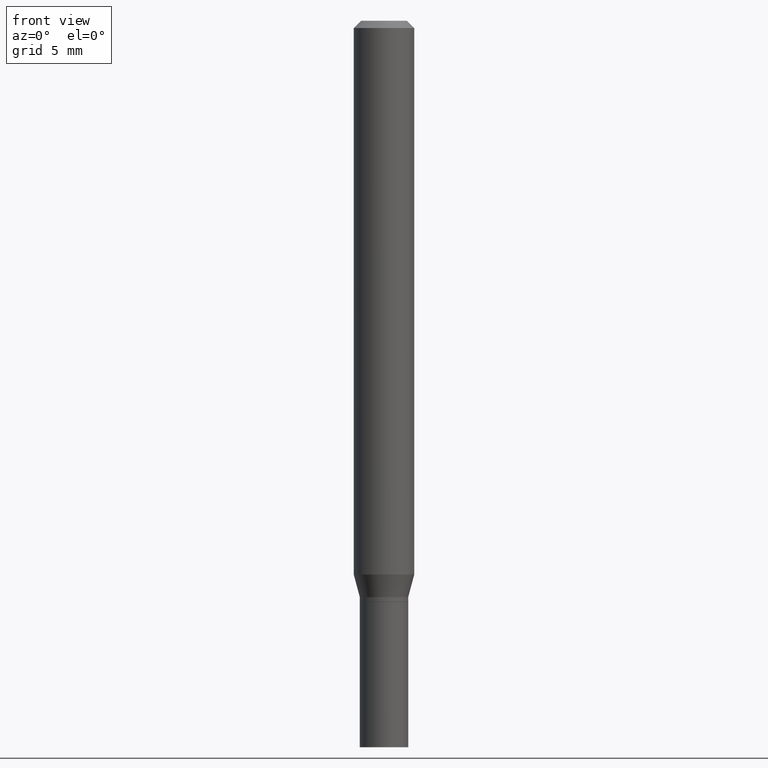
[diagram: clean part render]
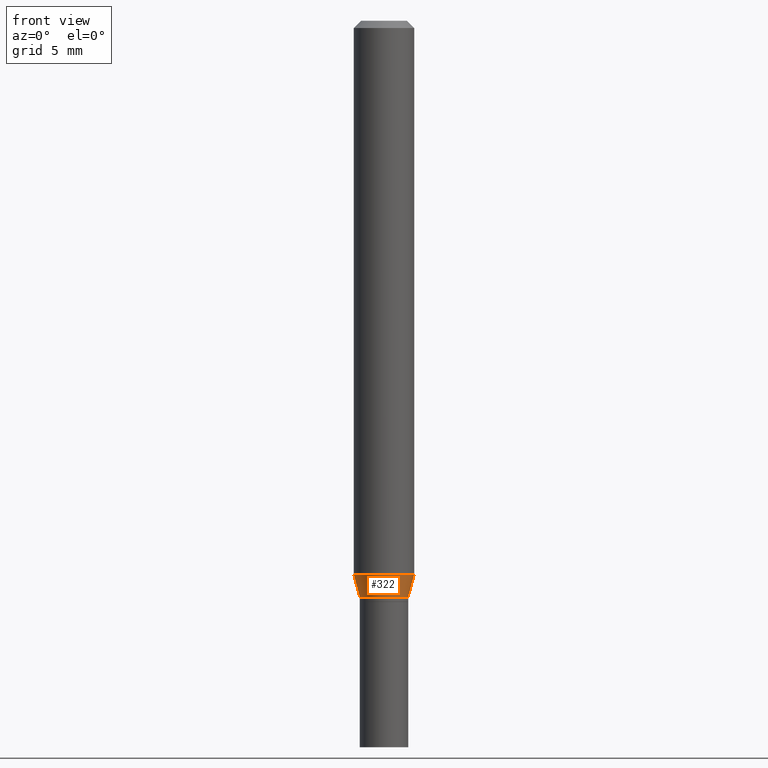
[diagram: same view with one face highlighted and labeled with its STEP entity id]
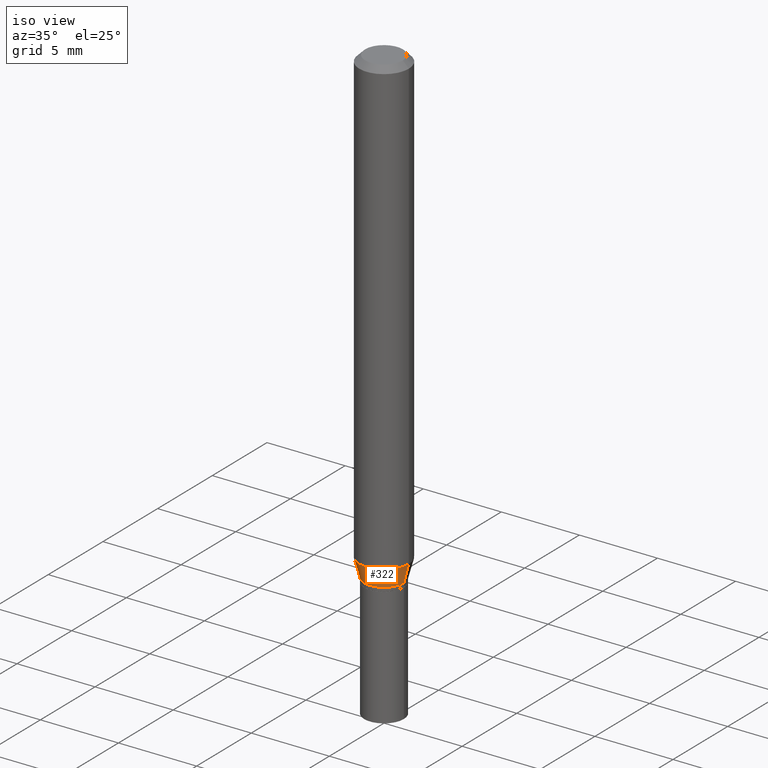
[diagram: same view with one face highlighted and labeled with its STEP entity id]
A machine part, front view. The second image highlights one B-rep face of the part: STEP entity #322.
A second angle (iso view) of the same face is appended — the face is thin or edge-on in the first view.
In plain terms, the highlighted conical surface has half-angle 15 deg.
Its self-contained STEP definition (entity closure, byte-faithful):
#6 = DIRECTION ( 'NONE',  ( 0.2588190451025219607, 1.565188264969617432E-15, 0.9659258262890679791 ) ) ;
#10 = CIRCLE ( 'NONE', #90, 0.05000000000000006523 ) ;
#15 = CARTESIAN_POINT ( 'NONE',  ( -0.05000000000000006523, -3.673742593419279671E-15, -1.190000000000000169 ) ) ;
#59 = ORIENTED_EDGE ( 'NONE', *, *, #453, .F. ) ;
#77 = EDGE_CURVE ( 'NONE', #390, #273, #10, .T. ) ;
#90 = AXIS2_PLACEMENT_3D ( 'NONE', #214, #321, #147 ) ;
#94 = VERTEX_POINT ( 'NONE', #250 ) ;
#104 = ORIENTED_EDGE ( 'NONE', *, *, #106, .T. ) ;
#106 = EDGE_CURVE ( 'NONE', #273, #140, #222, .T. ) ;
#129 = ORIENTED_EDGE ( 'NONE', *, *, #225, .F. ) ;
#137 = ORIENTED_EDGE ( 'NONE', *, *, #77, .T. ) ;
#140 = VERTEX_POINT ( 'NONE', #156 ) ;
#147 = DIRECTION ( 'NONE',  ( 1.000000000000000000, -6.982962677686265133E-15, 0.000000000000000000 ) ) ;
#156 = CARTESIAN_POINT ( 'NONE',  ( 0.06250000000000000000, -4.428418138700722248E-15, -1.143349364905389631 ) ) ;
#164 = EDGE_LOOP ( 'NONE', ( #59, #137, #104, #129 ) ) ;
#176 = DIRECTION ( 'NONE',  ( -2.445468806185136597E-29, 3.491481338843145583E-15, 1.000000000000000000 ) ) ;
#191 = CIRCLE ( 'NONE', #286, 0.06250000000000000000 ) ;
#214 = CARTESIAN_POINT ( 'NONE',  ( 2.910107879360313156E-29, -4.154862793223344154E-15, -1.190000000000000169 ) ) ;
#216 = FACE_OUTER_BOUND ( 'NONE', #164, .T. ) ;
#222 = LINE ( 'NONE', #362, #227 ) ;
#225 = EDGE_CURVE ( 'NONE', #94, #140, #191, .T. ) ;
#226 = AXIS2_PLACEMENT_3D ( 'NONE', #356, #176, #437 ) ;
#227 = VECTOR ( 'NONE', #6, 39.37007874015748143 ) ;
#245 = CONICAL_SURFACE ( 'NONE', #226, 0.05000000000000006523, 0.2617993877991506846 ) ;
#250 = CARTESIAN_POINT ( 'NONE',  ( -0.06250000000000000000, -3.547893761495267568E-15, -1.143349364905389631 ) ) ;
#264 = CARTESIAN_POINT ( 'NONE',  ( -0.05000000000000006523, -3.799591425343292957E-15, -1.190000000000000169 ) ) ;
#265 = DIRECTION ( 'NONE',  ( -2.445468806185136597E-29, 3.491481338843145583E-15, 1.000000000000000000 ) ) ;
#273 = VERTEX_POINT ( 'NONE', #334 ) ;
#286 = AXIS2_PLACEMENT_3D ( 'NONE', #328, #265, #371 ) ;
#321 = DIRECTION ( 'NONE',  ( -2.445468806185136597E-29, 3.491481338843145583E-15, 1.000000000000000000 ) ) ;
#322 = ADVANCED_FACE ( 'NONE', ( #216 ), #245, .T. ) ;
#328 = CARTESIAN_POINT ( 'NONE',  ( 2.796025206447717260E-29, -3.991982971345330579E-15, -1.143349364905389631 ) ) ;
#334 = CARTESIAN_POINT ( 'NONE',  ( 0.05000000000000006523, -4.504010927107657490E-15, -1.190000000000000169 ) ) ;
#356 = CARTESIAN_POINT ( 'NONE',  ( 2.910107879360313156E-29, -4.154862793223344154E-15, -1.190000000000000169 ) ) ;
#359 = VECTOR ( 'NONE', #373, 39.37007874015748143 ) ;
#362 = CARTESIAN_POINT ( 'NONE',  ( 0.05000000000000006523, -4.504010927107657490E-15, -1.190000000000000169 ) ) ;
#371 = DIRECTION ( 'NONE',  ( 1.000000000000000000, -6.982962677686270655E-15, 0.000000000000000000 ) ) ;
#373 = DIRECTION ( 'NONE',  ( -0.2588190451025219607, 5.211531920934553408E-15, 0.9659258262890679791 ) ) ;
#390 = VERTEX_POINT ( 'NONE', #15 ) ;
#421 = LINE ( 'NONE', #264, #359 ) ;
#437 = DIRECTION ( 'NONE',  ( 1.000000000000000000, -6.982962677686265133E-15, 0.000000000000000000 ) ) ;
#453 = EDGE_CURVE ( 'NONE', #390, #94, #421, .T. ) ;